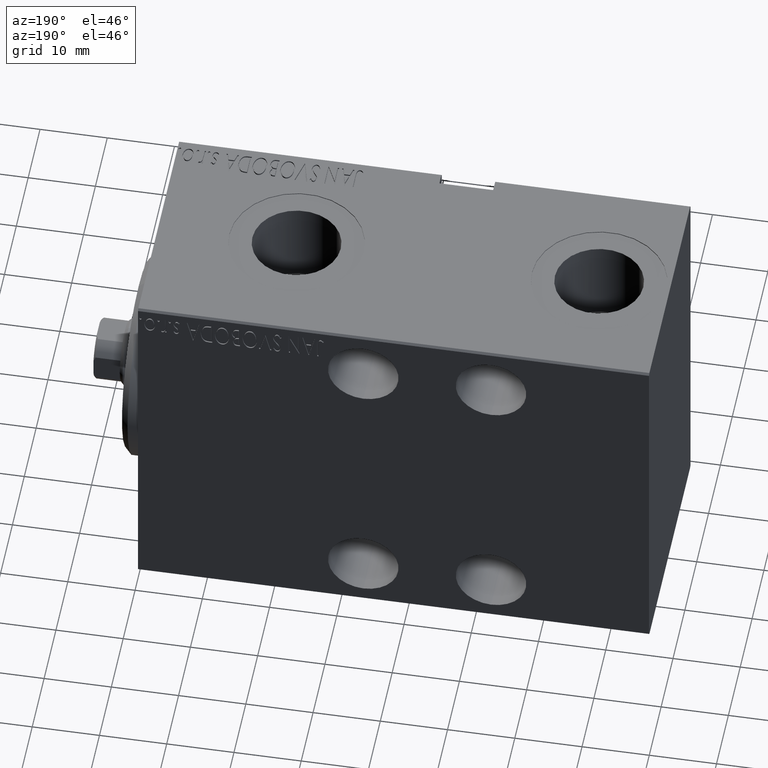
[diagram: clean part render]
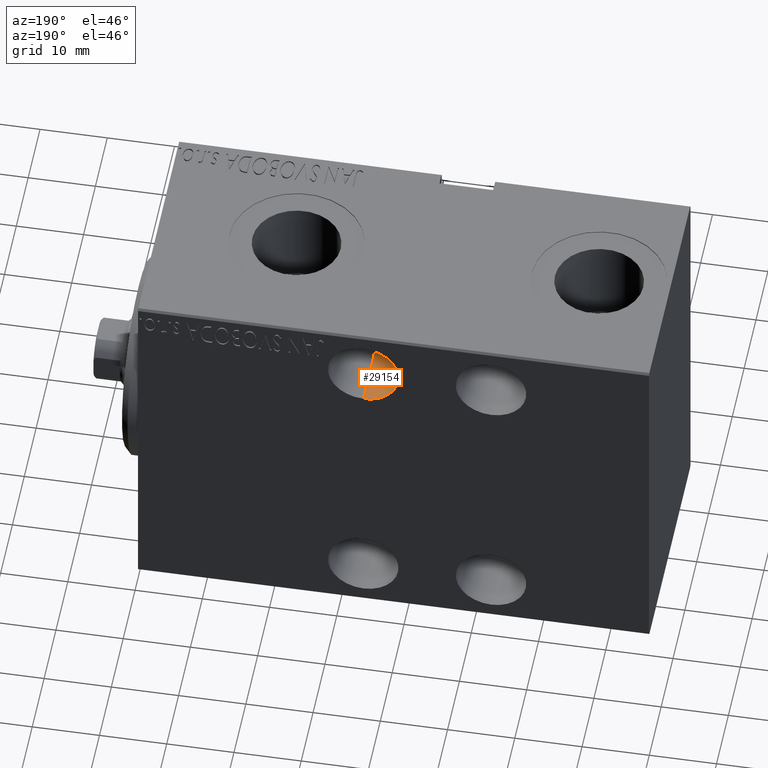
[diagram: same view with one face highlighted and labeled with its STEP entity id]
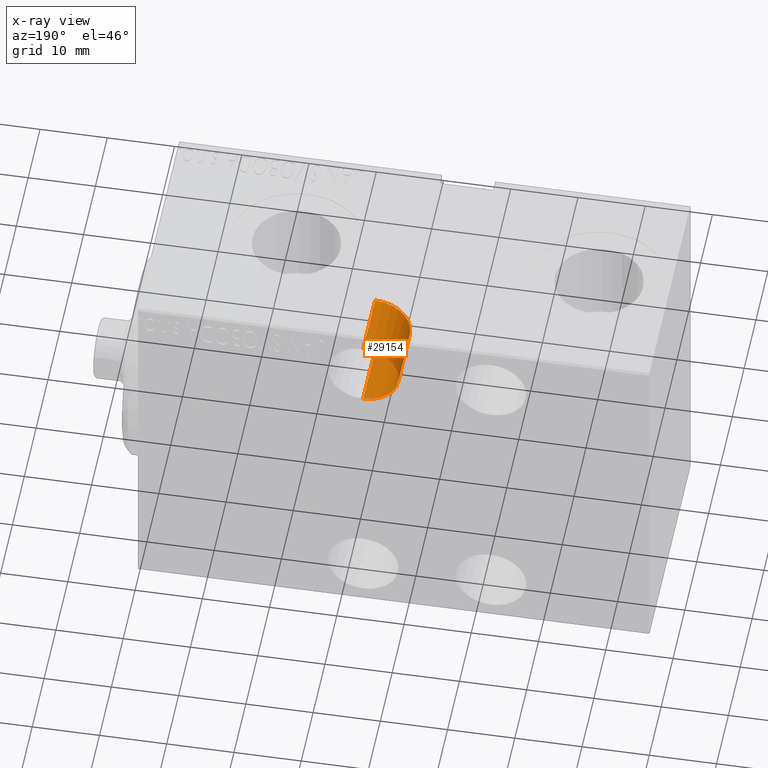
[diagram: x-ray of the same camera — body ghosted, the highlighted face saturated]
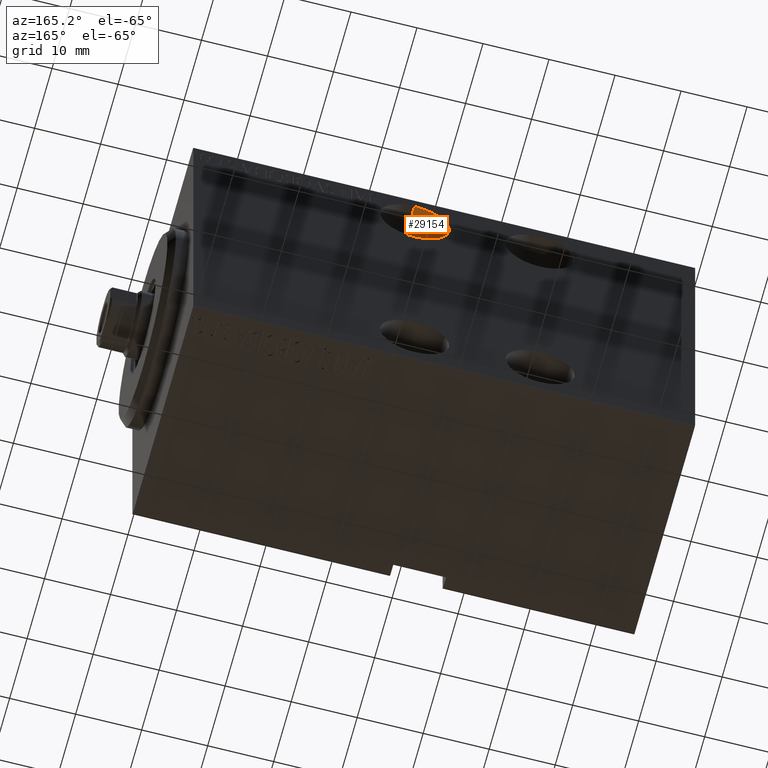
[diagram: same view with one face highlighted and labeled with its STEP entity id]
A machine part, auxiliary view. The second image highlights one B-rep face of the part: STEP entity #29154.
The next image is the same camera in x-ray: the body ghosted, the highlighted face saturated — about 0% of this face is hidden behind the body in this view.
A second angle (auxiliary view) of the same face is appended — the face is thin or edge-on in the first view.
In plain terms, the highlighted cylindrical surface (edge-blend (fillet) strip) has radius 5.25 mm, axis along (0, 1, -0).
Its self-contained STEP definition (entity closure, byte-faithful):
#1397 = CARTESIAN_POINT ( 'NONE',  ( 33.50000000000000000, -17.49999999999999645, 20.00000000000000000 ) ) ;
#1614 = DIRECTION ( 'NONE',  ( 0.000000000000000000, 0.000000000000000000, -1.000000000000000000 ) ) ;
#1896 = EDGE_CURVE ( 'NONE', #14721, #3742, #42583, .T. ) ;
#2711 = ORIENTED_EDGE ( 'NONE', *, *, #24999, .F. ) ;
#3742 = VERTEX_POINT ( 'NONE', #14462 ) ;
#3864 = AXIS2_PLACEMENT_3D ( 'NONE', #34918, #28126, #31613 ) ;
#3899 = CIRCLE ( 'NONE', #38733, 5.250000000000004441 ) ;
#6905 = CARTESIAN_POINT ( 'NONE',  ( 33.50000000000000000, -7.499999999999998224, 14.74999999999999645 ) ) ;
#8024 = CYLINDRICAL_SURFACE ( 'NONE', #3864, 5.250000000000004441 ) ;
#9752 = DIRECTION ( 'NONE',  ( -0.000000000000000000, -1.000000000000000000, -0.000000000000000000 ) ) ;
#10877 = FACE_OUTER_BOUND ( 'NONE', #23415, .T. ) ;
#12639 = CARTESIAN_POINT ( 'NONE',  ( 33.50000000000000000, -7.499999999999998224, 14.74999999999999645 ) ) ;
#14462 = CARTESIAN_POINT ( 'NONE',  ( 33.50000000000000000, -17.49999999999999645, 25.25000000000000355 ) ) ;
#14721 = VERTEX_POINT ( 'NONE', #28322 ) ;
#15324 = EDGE_CURVE ( 'NONE', #39567, #25664, #15719, .T. ) ;
#15719 = LINE ( 'NONE', #12639, #29539 ) ;
#16143 = DIRECTION ( 'NONE',  ( -0.000000000000000000, -1.000000000000000000, -0.000000000000000000 ) ) ;
#16363 = AXIS2_PLACEMENT_3D ( 'NONE', #41935, #18080, #22824 ) ;
#18080 = DIRECTION ( 'NONE',  ( 0.000000000000000000, -1.000000000000000000, 0.000000000000000000 ) ) ;
#22824 = DIRECTION ( 'NONE',  ( 0.000000000000000000, 0.000000000000000000, -1.000000000000000000 ) ) ;
#23415 = EDGE_LOOP ( 'NONE', ( #43249, #2711, #24568, #26735 ) ) ;
#24568 = ORIENTED_EDGE ( 'NONE', *, *, #15324, .T. ) ;
#24999 = EDGE_CURVE ( 'NONE', #39567, #14721, #31003, .T. ) ;
#25664 = VERTEX_POINT ( 'NONE', #42646 ) ;
#26735 = ORIENTED_EDGE ( 'NONE', *, *, #30295, .T. ) ;
#28126 = DIRECTION ( 'NONE',  ( -0.000000000000000000, -1.000000000000000000, -0.000000000000000000 ) ) ;
#28322 = CARTESIAN_POINT ( 'NONE',  ( 33.50000000000000000, -7.499999999999998224, 25.25000000000000355 ) ) ;
#29154 = ADVANCED_FACE ( 'NONE', ( #10877 ), #8024, .F. ) ;
#29298 = VECTOR ( 'NONE', #9752, 1000.000000000000000 ) ;
#29539 = VECTOR ( 'NONE', #16143, 1000.000000000000000 ) ;
#30295 = EDGE_CURVE ( 'NONE', #25664, #3742, #3899, .T. ) ;
#31003 = CIRCLE ( 'NONE', #16363, 5.250000000000004441 ) ;
#31613 = DIRECTION ( 'NONE',  ( 0.000000000000000000, 0.000000000000000000, -1.000000000000000000 ) ) ;
#34918 = CARTESIAN_POINT ( 'NONE',  ( 33.50000000000000000, -7.499999999999998224, 20.00000000000000000 ) ) ;
#38733 = AXIS2_PLACEMENT_3D ( 'NONE', #1397, #41446, #1614 ) ;
#39288 = CARTESIAN_POINT ( 'NONE',  ( 33.50000000000000000, -7.499999999999998224, 25.25000000000000355 ) ) ;
#39567 = VERTEX_POINT ( 'NONE', #6905 ) ;
#41446 = DIRECTION ( 'NONE',  ( 0.000000000000000000, -1.000000000000000000, 0.000000000000000000 ) ) ;
#41935 = CARTESIAN_POINT ( 'NONE',  ( 33.50000000000000000, -7.499999999999998224, 20.00000000000000000 ) ) ;
#42583 = LINE ( 'NONE', #39288, #29298 ) ;
#42646 = CARTESIAN_POINT ( 'NONE',  ( 33.50000000000000000, -17.49999999999999645, 14.74999999999999645 ) ) ;
#43249 = ORIENTED_EDGE ( 'NONE', *, *, #1896, .F. ) ;